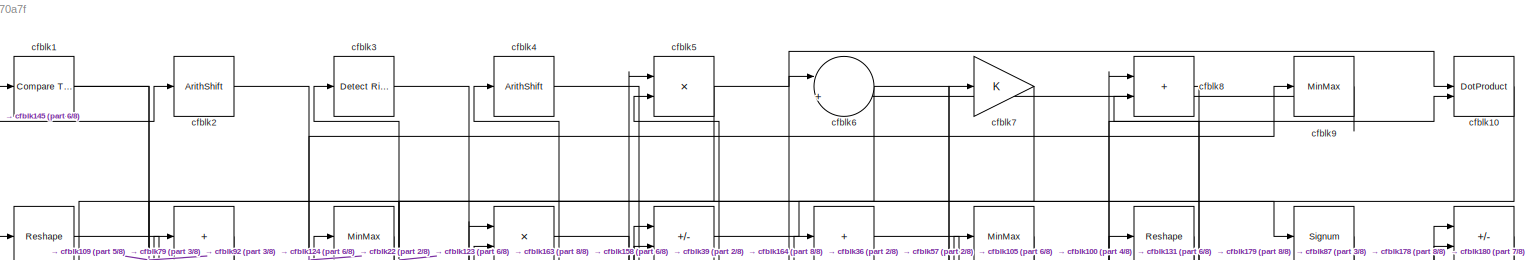
[diagram: root canvas - part 1/8, full width, top band]
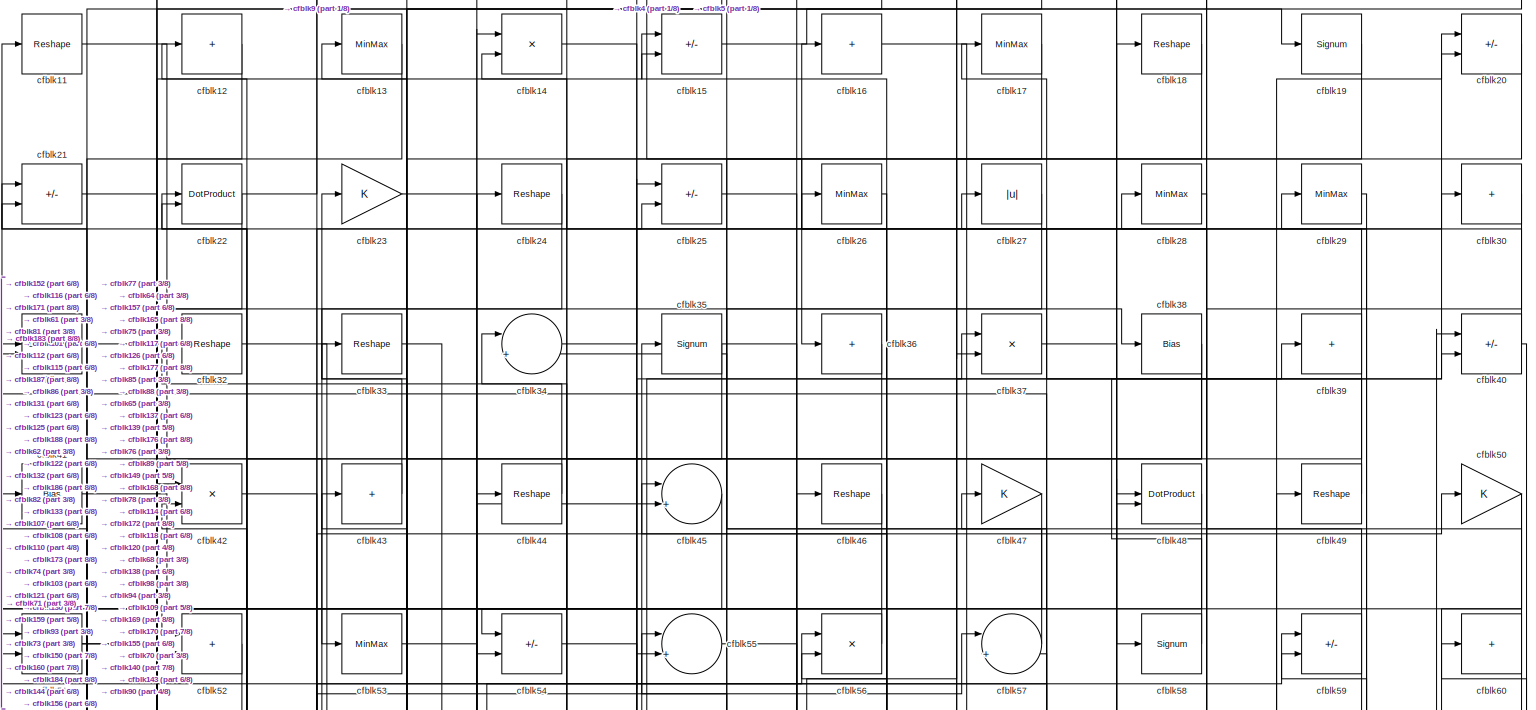
[diagram: root canvas - part 2/8, full width, top band]
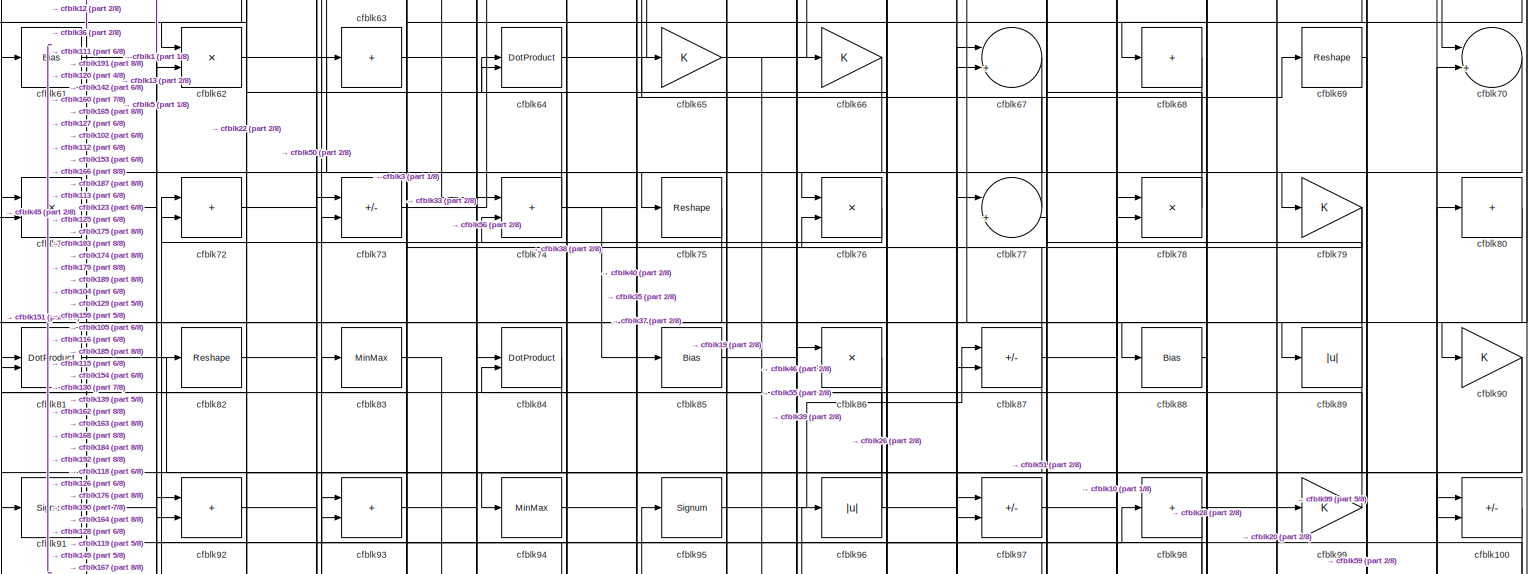
[diagram: root canvas - part 3/8, full width, middle band]
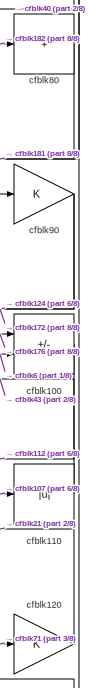
[diagram: root canvas - part 4/8, middle right region]
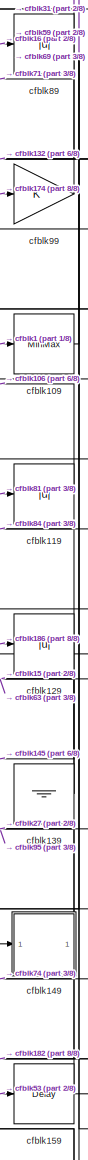
[diagram: root canvas - part 5/8, middle right region]
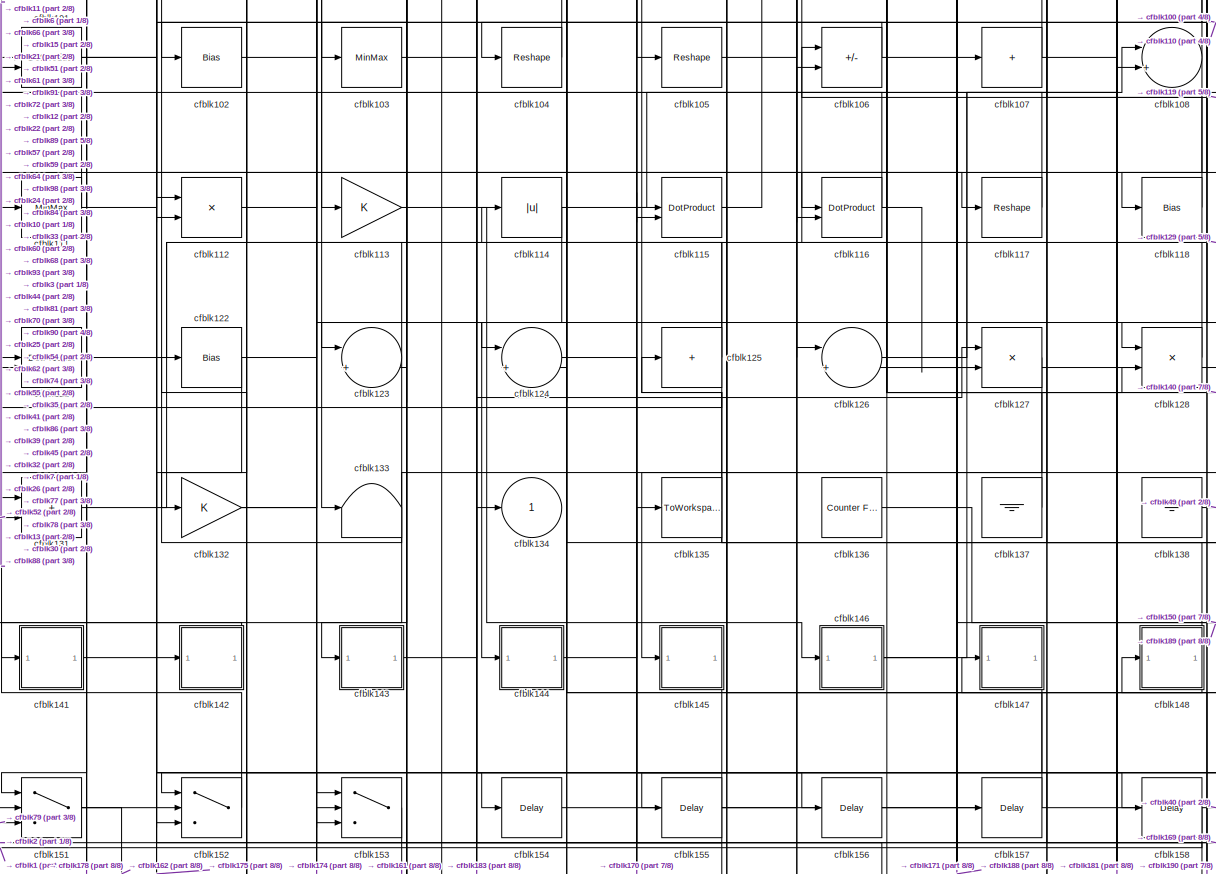
[diagram: root canvas - part 6/8, full width, middle band]
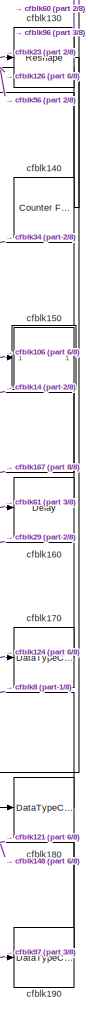
[diagram: root canvas - part 7/8, bottom right region]
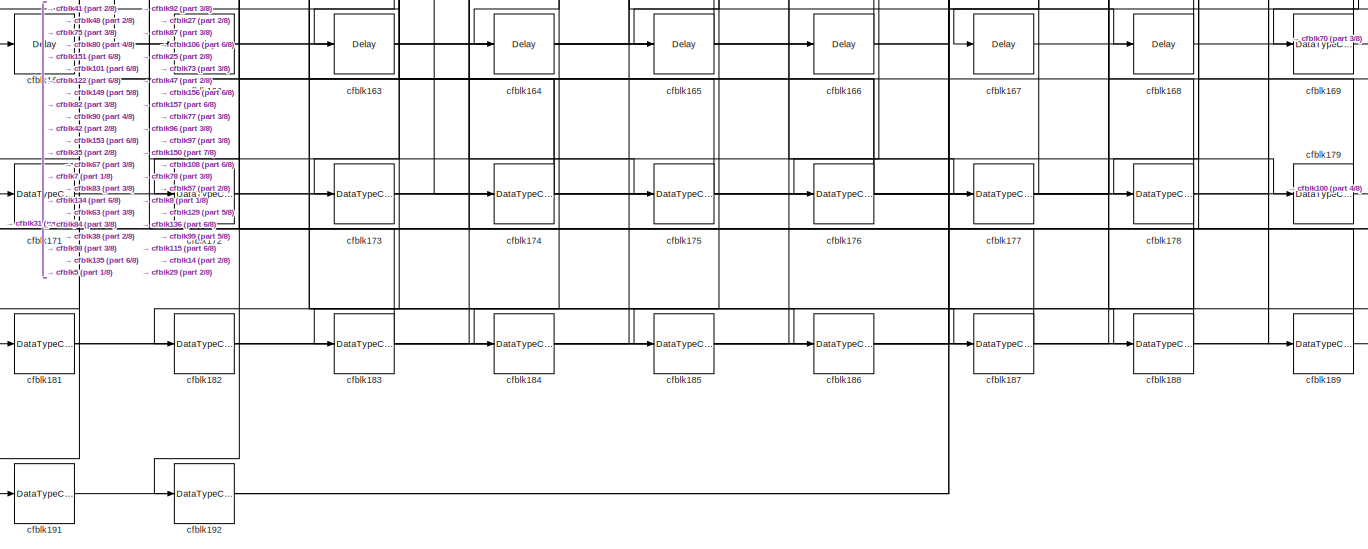
[diagram: root canvas - part 8/8, full width, bottom band]
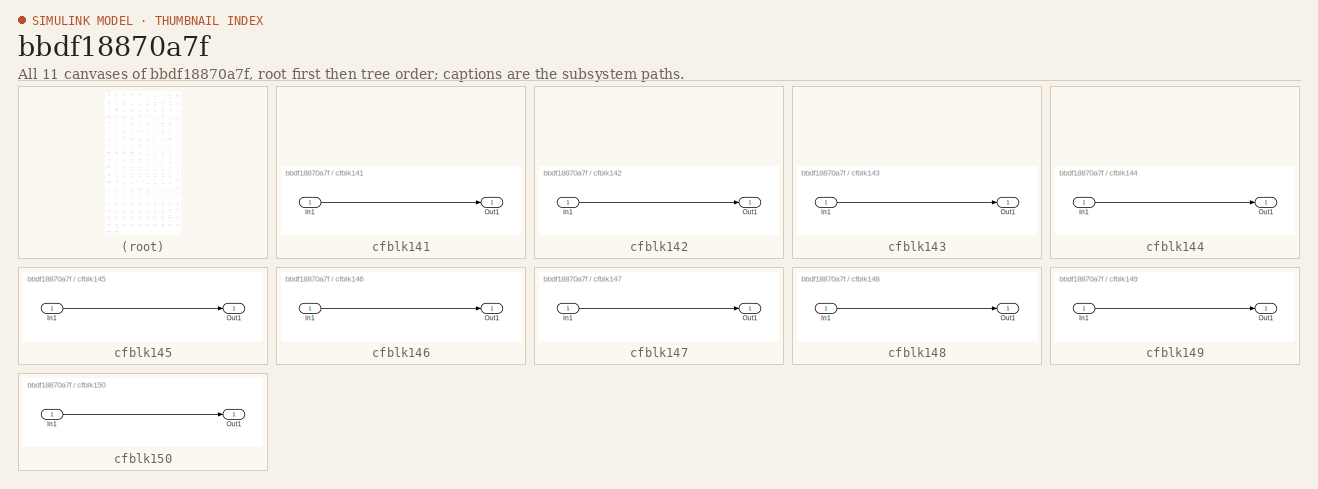
[diagram: thumbnail index - all 11 canvases of the model, root first then tree order]
MODEL slx_bbdf18870a7f
KIND model
CONFIG AbsTol = auto
CONFIG EnableMultiTasking = off
CONFIG FixedStep = auto
CONFIG MaxStep = auto
CONFIG MinStep = auto
CONFIG RelTol = 1e-3
CONFIG SampleTimeConstraint = Unconstrained
CONFIG SolverName = VariableStepAuto
CONFIG StartTime = 0.0
CONFIG StopTime = 10.0
BLOCK [Reference] cfblk1  REF=hdlsllib/Logic and Bit
Operations/Compare
To Constant
  SourceBlock = hdlsllib/Logic and Bit\nOperations/Compare\nTo Constant
  SourceType = Compare To Constant
BLOCK [DotProduct] cfblk10
  OutDataTypeStr = Inherit: Inherit via internal rule
BLOCK [Sum] cfblk100
  IconShape = rectangular
  Inputs = +-
BLOCK [DotProduct] cfblk101
  OutDataTypeStr = Inherit: Inherit via internal rule
BLOCK [Bias] cfblk102
  Bias = 0.0
  SaturateOnIntegerOverflow = off
BLOCK [MinMax] cfblk103
BLOCK [Reshape] cfblk104
BLOCK [Reshape] cfblk105
BLOCK [Sum] cfblk106
  IconShape = rectangular
  Inputs = +-
BLOCK [Sum] cfblk107
  IconShape = rectangular
  Inputs = +
BLOCK [Sum] cfblk108
  Inputs = |++
BLOCK [MinMax] cfblk109
BLOCK [Reshape] cfblk11
BLOCK [Abs] cfblk110
  SaturateOnIntegerOverflow = off
BLOCK [MinMax] cfblk111
BLOCK [Product] cfblk112
  Inputs = */
  RndMeth = Zero
  SaturateOnIntegerOverflow = on
BLOCK [Gain] cfblk113
BLOCK [Abs] cfblk114
  SaturateOnIntegerOverflow = off
BLOCK [DotProduct] cfblk115
  OutDataTypeStr = Inherit: Inherit via internal rule
BLOCK [DotProduct] cfblk116
  OutDataTypeStr = Inherit: Inherit via internal rule
BLOCK [Reshape] cfblk117
BLOCK [Bias] cfblk118
  Bias = 0.0
  SaturateOnIntegerOverflow = off
BLOCK [Abs] cfblk119
  SaturateOnIntegerOverflow = off
BLOCK [Sum] cfblk12
  IconShape = rectangular
  Inputs = +
BLOCK [Gain] cfblk120
BLOCK [DotProduct] cfblk121
  OutDataTypeStr = Inherit: Inherit via internal rule
BLOCK [Bias] cfblk122
  Bias = 0.0
  SaturateOnIntegerOverflow = off
BLOCK [Sum] cfblk123
  Inputs = |++
BLOCK [Sum] cfblk124
  Inputs = |++
BLOCK [Sum] cfblk125
  IconShape = rectangular
  Inputs = +
BLOCK [Sum] cfblk126
  Inputs = |++
BLOCK [Product] cfblk127
  Inputs = */
  RndMeth = Zero
  SaturateOnIntegerOverflow = on
BLOCK [Product] cfblk128
  Inputs = */
  RndMeth = Zero
  SaturateOnIntegerOverflow = on
BLOCK [Abs] cfblk129
  SaturateOnIntegerOverflow = off
BLOCK [MinMax] cfblk13
BLOCK [Reshape] cfblk130
BLOCK [Sum] cfblk131
  IconShape = rectangular
BLOCK [Gain] cfblk132
BLOCK [Terminator] cfblk133
BLOCK [Outport] cfblk134
  VectorParamsAs1DForOutWhenUnconnected = off
BLOCK [ToWorkspace] cfblk135
  MaxDataPoints = inf
  SampleTime = -1
  SaveFormat = Timeseries
  VariableName = simout
BLOCK [Reference] cfblk136  REF=hdlsllib/Sources/Counter
Free-Running
  SourceBlock = hdlsllib/Sources/Counter\nFree-Running
  SourceType = Counter Free-Running
BLOCK [Ground] cfblk137
BLOCK [Ground] cfblk138
BLOCK [Ground] cfblk139
BLOCK [Product] cfblk14
  Inputs = */
  RndMeth = Zero
  SaturateOnIntegerOverflow = on
BLOCK [Reference] cfblk140  REF=hdlsllib/Sources/Counter
Free-Running
  SourceBlock = hdlsllib/Sources/Counter\nFree-Running
  SourceType = Counter Free-Running
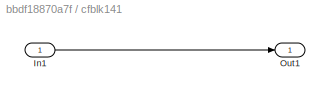
BLOCK [SubSystem] cfblk141
  LibrarySourceBlock = hdlsllib/Ports &\nSubsystems/Subsystem
BLOCK [Inport] cfblk141/In1
BLOCK [Outport] cfblk141/Out1
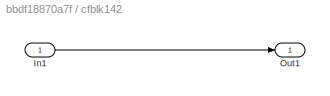
BLOCK [SubSystem] cfblk142
  LibrarySourceBlock = hdlsllib/Ports &\nSubsystems/Subsystem
BLOCK [Inport] cfblk142/In1
BLOCK [Outport] cfblk142/Out1
BLOCK [SubSystem] cfblk143
  LibrarySourceBlock = hdlsllib/Ports &\nSubsystems/Subsystem
BLOCK [Inport] cfblk143/In1
BLOCK [Outport] cfblk143/Out1
BLOCK [SubSystem] cfblk144
  LibrarySourceBlock = hdlsllib/Ports &\nSubsystems/Subsystem
BLOCK [Inport] cfblk144/In1
BLOCK [Outport] cfblk144/Out1
BLOCK [SubSystem] cfblk145
  LibrarySourceBlock = hdlsllib/Ports &\nSubsystems/Subsystem
BLOCK [Inport] cfblk145/In1
BLOCK [Outport] cfblk145/Out1
BLOCK [SubSystem] cfblk146
  LibrarySourceBlock = hdlsllib/Ports &\nSubsystems/Subsystem
BLOCK [Inport] cfblk146/In1
BLOCK [Outport] cfblk146/Out1
BLOCK [SubSystem] cfblk147
  LibrarySourceBlock = hdlsllib/Ports &\nSubsystems/Subsystem
BLOCK [Inport] cfblk147/In1
BLOCK [Outport] cfblk147/Out1
BLOCK [SubSystem] cfblk148
  LibrarySourceBlock = hdlsllib/Ports &\nSubsystems/Subsystem
BLOCK [Inport] cfblk148/In1
BLOCK [Outport] cfblk148/Out1
BLOCK [SubSystem] cfblk149
  LibrarySourceBlock = hdlsllib/Ports &\nSubsystems/Subsystem
BLOCK [Inport] cfblk149/In1
BLOCK [Outport] cfblk149/Out1
BLOCK [Sum] cfblk15
  IconShape = rectangular
  Inputs = +-
BLOCK [SubSystem] cfblk150
  LibrarySourceBlock = hdlsllib/Ports &\nSubsystems/Subsystem
BLOCK [Inport] cfblk150/In1
BLOCK [Outport] cfblk150/Out1
BLOCK [Switch] cfblk151
  InputSameDT = off
  SaturateOnIntegerOverflow = off
BLOCK [Switch] cfblk152
  InputSameDT = off
  SaturateOnIntegerOverflow = off
BLOCK [Switch] cfblk153
  InputSameDT = off
  SaturateOnIntegerOverflow = off
BLOCK [Delay] cfblk154
  InputPortMap = u0
  SampleTime = 1
BLOCK [Delay] cfblk155
  InputPortMap = u0
  SampleTime = 1
BLOCK [Delay] cfblk156
  InputPortMap = u0
  SampleTime = 1
BLOCK [Delay] cfblk157
  InputPortMap = u0
  SampleTime = 1
BLOCK [Delay] cfblk158
  InputPortMap = u0
  SampleTime = 1
BLOCK [Delay] cfblk159
  InputPortMap = u0
  SampleTime = 1
BLOCK [Sum] cfblk16
  IconShape = rectangular
  Inputs = +
BLOCK [Delay] cfblk160
  InputPortMap = u0
  SampleTime = 1
BLOCK [Delay] cfblk161
  InputPortMap = u0
  SampleTime = 1
BLOCK [Delay] cfblk162
  InputPortMap = u0
  SampleTime = 1
BLOCK [Delay] cfblk163
  InputPortMap = u0
  SampleTime = 1
BLOCK [Delay] cfblk164
  InputPortMap = u0
  SampleTime = 1
BLOCK [Delay] cfblk165
  InputPortMap = u0
  SampleTime = 1
BLOCK [Delay] cfblk166
  InputPortMap = u0
  SampleTime = 1
BLOCK [Delay] cfblk167
  InputPortMap = u0
  SampleTime = 1
BLOCK [Delay] cfblk168
  InputPortMap = u0
  SampleTime = 1
BLOCK [DataTypeConversion] cfblk169
  RndMeth = Floor
  SaturateOnIntegerOverflow = off
BLOCK [MinMax] cfblk17
BLOCK [DataTypeConversion] cfblk170
  OutDataTypeStr = uint8
  RndMeth = Floor
  SaturateOnIntegerOverflow = off
BLOCK [DataTypeConversion] cfblk171
  OutDataTypeStr = uint8
  RndMeth = Floor
  SaturateOnIntegerOverflow = off
BLOCK [DataTypeConversion] cfblk172
  OutDataTypeStr = uint8
  RndMeth = Floor
  SaturateOnIntegerOverflow = off
BLOCK [DataTypeConversion] cfblk173
  OutDataTypeStr = uint8
  RndMeth = Floor
  SaturateOnIntegerOverflow = off
BLOCK [DataTypeConversion] cfblk174
  RndMeth = Floor
  SaturateOnIntegerOverflow = off
BLOCK [DataTypeConversion] cfblk175
  OutDataTypeStr = uint8
  RndMeth = Floor
  SaturateOnIntegerOverflow = off
BLOCK [DataTypeConversion] cfblk176
  RndMeth = Floor
  SaturateOnIntegerOverflow = off
BLOCK [DataTypeConversion] cfblk177
  OutDataTypeStr = uint8
  RndMeth = Floor
  SaturateOnIntegerOverflow = off
BLOCK [DataTypeConversion] cfblk178
  RndMeth = Floor
  SaturateOnIntegerOverflow = off
BLOCK [DataTypeConversion] cfblk179
  OutDataTypeStr = uint8
  RndMeth = Floor
  SaturateOnIntegerOverflow = off
BLOCK [Reshape] cfblk18
BLOCK [DataTypeConversion] cfblk180
  OutDataTypeStr = uint8
  RndMeth = Floor
  SaturateOnIntegerOverflow = off
BLOCK [DataTypeConversion] cfblk181
  RndMeth = Floor
  SaturateOnIntegerOverflow = off
BLOCK [DataTypeConversion] cfblk182
  OutDataTypeStr = uint8
  RndMeth = Floor
  SaturateOnIntegerOverflow = off
BLOCK [DataTypeConversion] cfblk183
  RndMeth = Floor
  SaturateOnIntegerOverflow = off
BLOCK [DataTypeConversion] cfblk184
  OutDataTypeStr = uint8
  RndMeth = Floor
  SaturateOnIntegerOverflow = off
BLOCK [DataTypeConversion] cfblk185
  OutDataTypeStr = uint8
  RndMeth = Floor
  SaturateOnIntegerOverflow = off
BLOCK [DataTypeConversion] cfblk186
  OutDataTypeStr = uint8
  RndMeth = Floor
  SaturateOnIntegerOverflow = off
BLOCK [DataTypeConversion] cfblk187
  OutDataTypeStr = uint8
  RndMeth = Floor
  SaturateOnIntegerOverflow = off
BLOCK [DataTypeConversion] cfblk188
  OutDataTypeStr = uint8
  RndMeth = Floor
  SaturateOnIntegerOverflow = off
BLOCK [DataTypeConversion] cfblk189
  RndMeth = Floor
  SaturateOnIntegerOverflow = off
BLOCK [Signum] cfblk19
BLOCK [DataTypeConversion] cfblk190
  RndMeth = Floor
  SaturateOnIntegerOverflow = off
BLOCK [DataTypeConversion] cfblk191
  OutDataTypeStr = uint8
  RndMeth = Floor
  SaturateOnIntegerOverflow = off
BLOCK [DataTypeConversion] cfblk192
  OutDataTypeStr = uint8
  RndMeth = Floor
  SaturateOnIntegerOverflow = off
BLOCK [ArithShift] cfblk2
  BitShiftNumber = 8
  InputPortMap = u0
BLOCK [Sum] cfblk20
  IconShape = rectangular
  Inputs = +-
BLOCK [Sum] cfblk21
  IconShape = rectangular
  Inputs = +-
BLOCK [DotProduct] cfblk22
  OutDataTypeStr = Inherit: Inherit via internal rule
BLOCK [Gain] cfblk23
BLOCK [Reshape] cfblk24
BLOCK [Sum] cfblk25
  IconShape = rectangular
  Inputs = +-
BLOCK [MinMax] cfblk26
BLOCK [Abs] cfblk27
  SaturateOnIntegerOverflow = off
BLOCK [MinMax] cfblk28
BLOCK [MinMax] cfblk29
BLOCK [Reference] cfblk3  REF=hdlsllib/Logic and Bit
Operations/Detect Rise
Positive
  SourceBlock = hdlsllib/Logic and Bit\nOperations/Detect Rise\nPositive
  SourceType = Detect Rise Positive
BLOCK [Sum] cfblk30
  IconShape = rectangular
  Inputs = +
BLOCK [DotProduct] cfblk31
  OutDataTypeStr = Inherit: Inherit via internal rule
BLOCK [Reshape] cfblk32
BLOCK [Reshape] cfblk33
BLOCK [Sum] cfblk34
  Inputs = |++
BLOCK [Signum] cfblk35
BLOCK [Sum] cfblk36
  IconShape = rectangular
  Inputs = +
BLOCK [Product] cfblk37
  Inputs = */
  RndMeth = Zero
  SaturateOnIntegerOverflow = on
BLOCK [Bias] cfblk38
  Bias = 0.0
  SaturateOnIntegerOverflow = off
BLOCK [Sum] cfblk39
  IconShape = rectangular
  Inputs = +
BLOCK [ArithShift] cfblk4
  BitShiftNumber = 8
  InputPortMap = u0
BLOCK [Sum] cfblk40
  IconShape = rectangular
  Inputs = +-
BLOCK [Bias] cfblk41
  Bias = 0.0
  SaturateOnIntegerOverflow = off
BLOCK [Product] cfblk42
  Inputs = */
  RndMeth = Zero
  SaturateOnIntegerOverflow = on
BLOCK [Sum] cfblk43
  IconShape = rectangular
  Inputs = +
BLOCK [Reshape] cfblk44
BLOCK [Sum] cfblk45
  Inputs = |++
BLOCK [Reshape] cfblk46
BLOCK [Gain] cfblk47
BLOCK [DotProduct] cfblk48
  OutDataTypeStr = Inherit: Inherit via internal rule
BLOCK [Reshape] cfblk49
BLOCK [Product] cfblk5
  Inputs = */
  RndMeth = Zero
  SaturateOnIntegerOverflow = on
BLOCK [Gain] cfblk50
BLOCK [Product] cfblk51
  Inputs = */
  RndMeth = Zero
  SaturateOnIntegerOverflow = on
BLOCK [Sum] cfblk52
  IconShape = rectangular
BLOCK [MinMax] cfblk53
BLOCK [Sum] cfblk54
  IconShape = rectangular
  Inputs = +-
BLOCK [Sum] cfblk55
  Inputs = |++
BLOCK [Product] cfblk56
  Inputs = */
  RndMeth = Zero
  SaturateOnIntegerOverflow = on
BLOCK [Sum] cfblk57
  Inputs = |++
BLOCK [Signum] cfblk58
BLOCK [Sum] cfblk59
  IconShape = rectangular
  Inputs = +-
BLOCK [Sum] cfblk6
  Inputs = |++
BLOCK [Sum] cfblk60
  IconShape = rectangular
  Inputs = +
BLOCK [Bias] cfblk61
  Bias = 0.0
  SaturateOnIntegerOverflow = off
BLOCK [Product] cfblk62
  Inputs = */
  RndMeth = Zero
  SaturateOnIntegerOverflow = on
BLOCK [Sum] cfblk63
  IconShape = rectangular
  Inputs = +
BLOCK [DotProduct] cfblk64
  OutDataTypeStr = Inherit: Inherit via internal rule
BLOCK [Gain] cfblk65
BLOCK [Gain] cfblk66
BLOCK [Sum] cfblk67
  Inputs = |++
BLOCK [Sum] cfblk68
  IconShape = rectangular
  Inputs = +
BLOCK [Reshape] cfblk69
BLOCK [Gain] cfblk7
BLOCK [Sum] cfblk70
  Inputs = |++
BLOCK [Product] cfblk71
  Inputs = */
  RndMeth = Zero
  SaturateOnIntegerOverflow = on
BLOCK [Sum] cfblk72
  IconShape = rectangular
BLOCK [Sum] cfblk73
  IconShape = rectangular
  Inputs = +-
BLOCK [Sum] cfblk74
  IconShape = rectangular
BLOCK [Reshape] cfblk75
BLOCK [Product] cfblk76
  Inputs = */
  RndMeth = Zero
  SaturateOnIntegerOverflow = on
BLOCK [Sum] cfblk77
  Inputs = |++
BLOCK [Product] cfblk78
  Inputs = */
  RndMeth = Zero
  SaturateOnIntegerOverflow = on
BLOCK [Gain] cfblk79
BLOCK [Sum] cfblk8
  IconShape = rectangular
BLOCK [Sum] cfblk80
  IconShape = rectangular
  Inputs = +
BLOCK [DotProduct] cfblk81
  OutDataTypeStr = Inherit: Inherit via internal rule
BLOCK [Reshape] cfblk82
BLOCK [MinMax] cfblk83
BLOCK [DotProduct] cfblk84
  OutDataTypeStr = Inherit: Inherit via internal rule
BLOCK [Bias] cfblk85
  Bias = 0.0
  SaturateOnIntegerOverflow = off
BLOCK [Product] cfblk86
  Inputs = */
  RndMeth = Zero
  SaturateOnIntegerOverflow = on
BLOCK [Sum] cfblk87
  IconShape = rectangular
  Inputs = +-
BLOCK [Bias] cfblk88
  Bias = 0.0
  SaturateOnIntegerOverflow = off
BLOCK [Abs] cfblk89
  SaturateOnIntegerOverflow = off
BLOCK [MinMax] cfblk9
BLOCK [Gain] cfblk90
BLOCK [Signum] cfblk91
BLOCK [Sum] cfblk92
  IconShape = rectangular
BLOCK [Sum] cfblk93
  IconShape = rectangular
BLOCK [MinMax] cfblk94
BLOCK [Signum] cfblk95
BLOCK [Abs] cfblk96
  SaturateOnIntegerOverflow = off
BLOCK [Sum] cfblk97
  IconShape = rectangular
  Inputs = +-
BLOCK [Sum] cfblk98
  IconShape = rectangular
  Inputs = +
BLOCK [Gain] cfblk99
LINE cfblk100:1 -> cfblk112:2
NET cfblk101:1 -> cfblk15:2, cfblk175:1
LINE cfblk102:1 -> cfblk64:1
LINE cfblk103:1 -> cfblk44:1
LINE cfblk104:1 -> cfblk81:2
LINE cfblk105:1 -> cfblk6:1
NET cfblk106:1 -> cfblk102:1, cfblk150:1
NET cfblk107:1 -> cfblk110:1, cfblk26:1
NET cfblk108:1 -> cfblk13:1, cfblk151:1
LINE cfblk109:1 -> cfblk59:1
LINE cfblk10:1 -> cfblk123:2
LINE cfblk110:1 -> cfblk43:1
NET cfblk111:1 -> cfblk101:1, cfblk93:2
LINE cfblk112:1 -> cfblk98:1
LINE cfblk113:1 -> cfblk146:1
NET cfblk114:1 -> cfblk144:1, cfblk18:1
NET cfblk115:1 -> cfblk155:1, cfblk66:1
NET cfblk116:1 -> cfblk127:2, cfblk21:1
LINE cfblk117:1 -> cfblk33:1
LINE cfblk118:1 -> cfblk77:2
LINE cfblk119:1 -> cfblk106:1
LINE cfblk11:1 -> cfblk38:1
LINE cfblk120:1 -> cfblk21:2
LINE cfblk121:1 -> cfblk24:1
NET cfblk122:1 -> cfblk152:3, cfblk59:2
NET cfblk123:1 -> cfblk12:1, cfblk151:2
LINE cfblk124:1 -> cfblk170:1
NET cfblk125:1 -> cfblk121:2, cfblk22:1, cfblk93:1
LINE cfblk126:1 -> cfblk78:1
LINE cfblk127:1 -> cfblk72:1
LINE cfblk128:1 -> cfblk114:1
NET cfblk129:1 -> cfblk145:1, cfblk84:2
LINE cfblk12:1 -> cfblk61:1
NET cfblk130:1 -> cfblk180:1, cfblk96:1
LINE cfblk131:1 -> cfblk7:1
NET cfblk132:1 -> cfblk25:2, cfblk57:1
LINE cfblk136:1 -> cfblk189:1
LINE cfblk137:1 -> cfblk45:1
LINE cfblk138:1 -> cfblk49:1
NET cfblk139:1 -> cfblk15:1, cfblk63:1
LINE cfblk13:1 -> cfblk62:2
NET cfblk140:1 -> cfblk126:2, cfblk56:2, cfblk60:1
LINE cfblk141/In1:1 -> cfblk141/Out1:1
LINE cfblk141:1 -> cfblk154:1
LINE cfblk142/In1:1 -> cfblk142/Out1:1
LINE cfblk142:1 -> cfblk141:1
LINE cfblk143/In1:1 -> cfblk143/Out1:1
LINE cfblk143:1 -> cfblk127:1
LINE cfblk144/In1:1 -> cfblk144/Out1:1
LINE cfblk144:1 -> cfblk25:1
LINE cfblk145/In1:1 -> cfblk145/Out1:1
LINE cfblk145:1 -> cfblk2:1
LINE cfblk146/In1:1 -> cfblk146/Out1:1
NET cfblk146:1 -> cfblk108:1, cfblk128:2
LINE cfblk147/In1:1 -> cfblk147/Out1:1
LINE cfblk147:1 -> cfblk152:1
LINE cfblk148/In1:1 -> cfblk148/Out1:1
NET cfblk148:1 -> cfblk125:1, cfblk147:1
LINE cfblk149/In1:1 -> cfblk149/Out1:1
NET cfblk149:1 -> cfblk182:1, cfblk27:1, cfblk95:1
LINE cfblk14:1 -> cfblk55:2
LINE cfblk150/In1:1 -> cfblk150/Out1:1
NET cfblk150:1 -> cfblk167:1, cfblk34:1
NET cfblk151:1 -> cfblk152:2, cfblk162:1
LINE cfblk152:1 -> cfblk11:1
LINE cfblk153:1 -> cfblk161:1
LINE cfblk154:1 -> cfblk86:1
LINE cfblk155:1 -> cfblk40:1
LINE cfblk156:1 -> cfblk188:1
LINE cfblk157:1 -> cfblk55:1
LINE cfblk158:1 -> cfblk1:1
LINE cfblk159:1 -> cfblk74:2
LINE cfblk15:1 -> cfblk19:1
LINE cfblk160:1 -> cfblk14:2
LINE cfblk161:1 -> cfblk106:2
LINE cfblk162:1 -> cfblk77:1
LINE cfblk163:1 -> cfblk87:2
LINE cfblk164:1 -> cfblk5:1
LINE cfblk165:1 -> cfblk92:1
LINE cfblk166:1 -> cfblk73:1
LINE cfblk167:1 -> cfblk70:2
LINE cfblk168:1 -> cfblk57:2
NET cfblk169:1 -> cfblk115:1, cfblk14:1
LINE cfblk16:1 -> cfblk89:1
LINE cfblk170:1 -> cfblk29:1
LINE cfblk171:1 -> cfblk157:1
LINE cfblk172:1 -> cfblk48:1
LINE cfblk173:1 -> cfblk48:2
NET cfblk174:1 -> cfblk153:2, cfblk82:1, cfblk99:1
LINE cfblk175:1 -> cfblk83:1
NET cfblk176:1 -> cfblk100:1, cfblk41:1, cfblk73:2, cfblk78:2
LINE cfblk177:1 -> cfblk47:1
NET cfblk178:1 -> cfblk101:2, cfblk192:1
LINE cfblk179:1 -> cfblk8:1
LINE cfblk17:1 -> cfblk37:2
LINE cfblk180:1 -> cfblk8:2
NET cfblk181:1 -> cfblk108:2, cfblk166:1
LINE cfblk182:1 -> cfblk80:1
NET cfblk183:1 -> cfblk134:1, cfblk135:1, cfblk31:1
LINE cfblk184:1 -> cfblk67:1
LINE cfblk185:1 -> cfblk67:2
LINE cfblk186:1 -> cfblk129:1
LINE cfblk187:1 -> cfblk42:1
LINE cfblk188:1 -> cfblk42:2
NET cfblk189:1 -> cfblk122:1, cfblk84:1
LINE cfblk18:1 -> cfblk103:1
NET cfblk190:1 -> cfblk121:1, cfblk148:1
LINE cfblk191:1 -> cfblk97:1
LINE cfblk192:1 -> cfblk97:2
LINE cfblk19:1 -> cfblk75:1
NET cfblk1:1 -> cfblk109:1, cfblk79:1
LINE cfblk20:1 -> cfblk54:1
LINE cfblk21:1 -> cfblk112:1
NET cfblk22:1 -> cfblk52:2, cfblk9:1
LINE cfblk23:1 -> cfblk130:1
LINE cfblk24:1 -> cfblk133:1
LINE cfblk25:1 -> cfblk177:1
LINE cfblk26:1 -> cfblk76:1
LINE cfblk27:1 -> cfblk165:1
LINE cfblk28:1 -> cfblk68:1
LINE cfblk29:1 -> cfblk169:1
LINE cfblk2:1 -> cfblk124:1
LINE cfblk30:1 -> cfblk118:1
LINE cfblk31:1 -> cfblk53:1
LINE cfblk32:1 -> cfblk107:1
LINE cfblk33:1 -> cfblk74:1
LINE cfblk34:1 -> cfblk30:1
NET cfblk35:1 -> cfblk117:1, cfblk173:1
LINE cfblk36:1 -> cfblk81:1
LINE cfblk37:1 -> cfblk58:1
NET cfblk38:1 -> cfblk184:1, cfblk62:1
NET cfblk39:1 -> cfblk116:1, cfblk4:1
LINE cfblk3:1 -> cfblk158:1
NET cfblk40:1 -> cfblk16:1, cfblk90:1
LINE cfblk41:1 -> cfblk126:1
LINE cfblk42:1 -> cfblk186:1
LINE cfblk43:1 -> cfblk23:1
LINE cfblk44:1 -> cfblk32:1
LINE cfblk45:1 -> cfblk71:2
LINE cfblk46:1 -> cfblk52:1
LINE cfblk47:1 -> cfblk176:1
LINE cfblk48:1 -> cfblk171:1
LINE cfblk49:1 -> cfblk17:1
LINE cfblk4:1 -> cfblk36:1
NET cfblk50:1 -> cfblk54:2, cfblk70:1
NET cfblk51:1 -> cfblk115:2, cfblk86:2
LINE cfblk52:1 -> cfblk131:2
LINE cfblk53:1 -> cfblk159:1
LINE cfblk54:1 -> cfblk156:1
LINE cfblk55:1 -> cfblk88:1
LINE cfblk56:1 -> cfblk51:1
LINE cfblk57:1 -> cfblk5:2
LINE cfblk58:1 -> cfblk20:1
NET cfblk59:1 -> cfblk34:2, cfblk94:1
NET cfblk5:1 -> cfblk10:1, cfblk92:2
NET cfblk60:1 -> cfblk143:1, cfblk28:1
NET cfblk61:1 -> cfblk153:3, cfblk160:1
LINE cfblk62:1 -> cfblk105:1
LINE cfblk63:1 -> cfblk179:1
LINE cfblk64:1 -> cfblk37:1
LINE cfblk65:1 -> cfblk39:1
LINE cfblk66:1 -> cfblk111:1
LINE cfblk67:1 -> cfblk183:1
LINE cfblk68:1 -> cfblk123:1
LINE cfblk69:1 -> cfblk149:1
NET cfblk6:1 -> cfblk100:2, cfblk131:1
LINE cfblk70:1 -> cfblk104:1
LINE cfblk71:1 -> cfblk120:1
LINE cfblk72:1 -> cfblk153:1
LINE cfblk73:1 -> cfblk56:1
NET cfblk74:1 -> cfblk116:2, cfblk22:2, cfblk69:1, cfblk85:1
LINE cfblk75:1 -> cfblk191:1
LINE cfblk76:1 -> cfblk72:2
LINE cfblk77:1 -> cfblk35:1
LINE cfblk78:1 -> cfblk51:2
NET cfblk79:1 -> cfblk151:3, cfblk76:2
LINE cfblk7:1 -> cfblk163:1
LINE cfblk80:1 -> cfblk181:1
LINE cfblk81:1 -> cfblk119:1
LINE cfblk82:1 -> cfblk50:1
LINE cfblk83:1 -> cfblk174:1
LINE cfblk84:1 -> cfblk113:1
LINE cfblk85:1 -> cfblk46:1
LINE cfblk86:1 -> cfblk91:1
NET cfblk87:1 -> cfblk10:2, cfblk185:1, cfblk3:1
LINE cfblk88:1 -> cfblk128:1
NET cfblk89:1 -> cfblk132:1, cfblk31:2
LINE cfblk8:1 -> cfblk178:1
NET cfblk90:1 -> cfblk124:2, cfblk172:1
LINE cfblk91:1 -> cfblk142:1
LINE cfblk92:1 -> cfblk187:1
LINE cfblk93:1 -> cfblk45:2
LINE cfblk94:1 -> cfblk40:2
LINE cfblk95:1 -> cfblk87:1
NET cfblk96:1 -> cfblk168:1, cfblk64:2, cfblk65:1
LINE cfblk97:1 -> cfblk190:1
NET cfblk98:1 -> cfblk164:1, cfblk20:2
LINE cfblk99:1 -> cfblk71:1
LINE cfblk9:1 -> cfblk6:2
note: NET lines group one-source signal fan-out (src -> all destinations, sorted); 1:1 wires keep LINE
